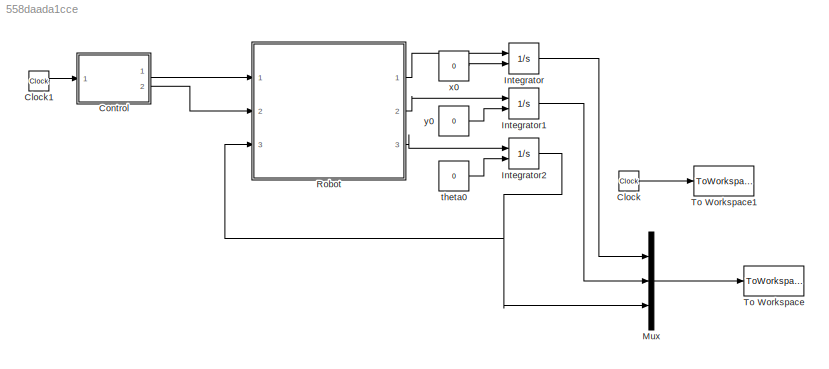
MODEL slx_558daada1cce
KIND model
CONFIG AbsTol = auto
CONFIG EnableMultiTasking = on
CONFIG FixedStep = auto
CONFIG MaxStep = auto
CONFIG MinStep = auto
CONFIG RelTol = 1e-3
CONFIG SampleTimeConstraint = Unconstrained
CONFIG Solver = ode45
CONFIG SolverName = ode45
CONFIG StartTime = 0.0
CONFIG StopTime = 9
BLOCK [Clock] Clock
BLOCK [Clock] Clock1
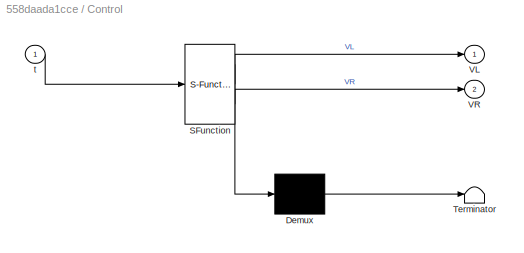
BLOCK [SubSystem] Control
  ErrorFcn = Stateflow.Translate.translate
  PermitHierarchicalResolution = ExplicitOnly
  Ports = [1, 2]
  RequestExecContextInheritance = off
  SFBlockType = MATLAB Function
  TreatAsAtomicUnit = on
BLOCK [Demux] Control/ Demux 
  Outputs = 1
  Ports = [1, 1]
BLOCK [S-Function] Control/ SFunction 
  EnableBusSupport = on
  FunctionName = sf_sfun
  PortCounts = [1 3]
  Ports = [1, 3]
  SFcnIsStateOwnerBlock = off
  SFunctionDeploymentMode = off
  Tag = Stateflow S-Function Testkinematic 1
BLOCK [Terminator] Control/ Terminator 
BLOCK [Outport] Control/VL
  IconDisplay = Port number
BLOCK [Outport] Control/VR
  IconDisplay = Port number
  Port = 2
BLOCK [Inport] Control/t
  IconDisplay = Port number
BLOCK [Integrator] Integrator
  InitialCondition = x0
  InitialConditionSource = external
  Ports = [2, 1]
BLOCK [Integrator] Integrator1
  InitialCondition = 2
  InitialConditionSource = external
  Ports = [2, 1]
BLOCK [Integrator] Integrator2
  InitialCondition = pi/4
  InitialConditionSource = external
  Ports = [2, 1]
BLOCK [Mux] Mux
  DisplayOption = bar
  Inputs = 3
  Ports = [3, 1]
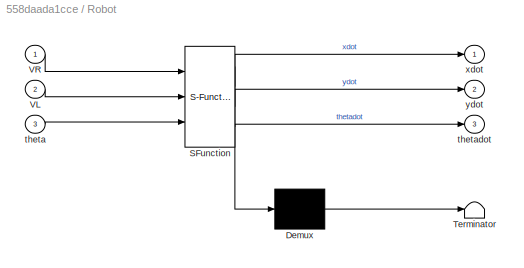
BLOCK [SubSystem] Robot
  ErrorFcn = Stateflow.Translate.translate
  PermitHierarchicalResolution = ExplicitOnly
  Ports = [3, 3]
  RequestExecContextInheritance = off
  SFBlockType = MATLAB Function
  TreatAsAtomicUnit = on
BLOCK [Demux] Robot/ Demux 
  Outputs = 1
  Ports = [1, 1]
BLOCK [S-Function] Robot/ SFunction 
  EnableBusSupport = on
  FunctionName = sf_sfun
  PortCounts = [3 4]
  Ports = [3, 4]
  SFcnIsStateOwnerBlock = off
  SFunctionDeploymentMode = off
  Tag = Stateflow S-Function Testkinematic 2
BLOCK [Terminator] Robot/ Terminator 
BLOCK [Inport] Robot/VL
  IconDisplay = Port number
  Port = 2
BLOCK [Inport] Robot/VR
  IconDisplay = Port number
BLOCK [Inport] Robot/theta
  IconDisplay = Port number
  Port = 3
BLOCK [Outport] Robot/thetadot
  IconDisplay = Port number
  Port = 3
BLOCK [Outport] Robot/xdot
  IconDisplay = Port number
BLOCK [Outport] Robot/ydot
  IconDisplay = Port number
  Port = 2
BLOCK [ToWorkspace] To Workspace
  MaxDataPoints = inf
  Ports = [1]
  SampleTime = 0.1
  VariableName = robPose
BLOCK [ToWorkspace] To Workspace1
  FixptAsFi = on
  MaxDataPoints = inf
  Ports = [1]
  SampleTime = -1
  Save2DSignal = 2-D array (concatenate along first dimension)
  VariableName = timelog
BLOCK [Constant] theta0
  Value = 0
BLOCK [Constant] x0
  Value = 0
BLOCK [Constant] y0
  Value = 0
LINE Clock1:1 -> Control:1
LINE Clock:1 -> To Workspace1:1
LINE Control:1 -> Robot:1
LINE Control:2 -> Robot:2
LINE Integrator1:1 -> Mux:2
NET Integrator2:1 -> Mux:3, Robot:3
LINE Integrator:1 -> Mux:1
LINE Mux:1 -> To Workspace:1
LINE Robot:1 -> Integrator:1
LINE Robot:2 -> Integrator1:1
LINE Robot:3 -> Integrator2:1
LINE theta0:1 -> Integrator2:2
LINE x0:1 -> Integrator:2
LINE y0:1 -> Integrator1:2
note: NET lines group one-source signal fan-out (src -> all destinations, sorted); 1:1 wires keep LINE
CHART Control states=1 transitions=1
  STATE_LABEL 'eML_blk_kernel()'
  STATE_LABEL 'SCRIPT:\nfunction [VL,VR]= fcn(t)\nif t<=2\n    VL=0.1;\n    VR=0.1;\nelseif t>2 && t<=5\n    VL=0.1;\n    VR=0.05;\nelse \n    VL=0.05;\n    VR=0.1;\nend'
CHART Robot states=1 transitions=1
  STATE_LABEL 'eML_blk_kernel()'
  STATE_LABEL 'SCRIPT:\nfunction [xdot, ydot, thetadot] = fcn(VR, VL,theta)\n\nd=0.08325*2; \nxdot=(VR+VL)/2*cos(theta);\nydot=(VR+VL)/2*sin(theta);\nthetadot=(VR-VL)/d;'
